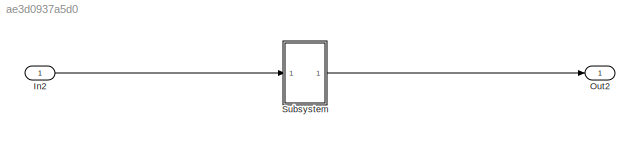
MODEL slx_ae3d0937a5d0
KIND model
CONFIG AbsTol = auto
CONFIG EnableMultiTasking = off
CONFIG FixedStep = auto
CONFIG MaxStep = auto
CONFIG MinStep = auto
CONFIG RelTol = 1e-3
CONFIG SampleTimeConstraint = Unconstrained
CONFIG Solver = FixedStepDiscrete
CONFIG SolverName = FixedStepDiscrete
CONFIG StartTime = 0.0
CONFIG StopTime = 10.0
BLOCK [Inport] In2
  OutDataTypeStr = uint32
BLOCK [Outport] Out2
  OutDataTypeStr = uint8
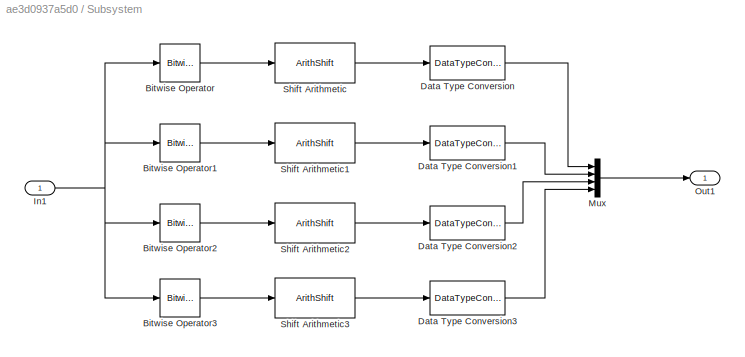
BLOCK [SubSystem] Subsystem
  Ports = [1, 1]
  RequestExecContextInheritance = off
BLOCK [Reference] Subsystem/Bitwise Operator  REF=simulink/Logic and Bit
Operations/Bitwise
Operator
  Ports = [1, 1]
  SourceBlock = simulink/Logic and Bit\nOperations/Bitwise\nOperator
  SourceProductBaseCode = SL
  SourceType = Bitwise Operator
BLOCK [Reference] Subsystem/Bitwise Operator1  REF=simulink/Logic and Bit
Operations/Bitwise
Operator
  Ports = [1, 1]
  SourceBlock = simulink/Logic and Bit\nOperations/Bitwise\nOperator
  SourceProductBaseCode = SL
  SourceType = Bitwise Operator
BLOCK [Reference] Subsystem/Bitwise Operator2  REF=simulink/Logic and Bit
Operations/Bitwise
Operator
  Ports = [1, 1]
  SourceBlock = simulink/Logic and Bit\nOperations/Bitwise\nOperator
  SourceProductBaseCode = SL
  SourceType = Bitwise Operator
BLOCK [Reference] Subsystem/Bitwise Operator3  REF=simulink/Logic and Bit
Operations/Bitwise
Operator
  Ports = [1, 1]
  SourceBlock = simulink/Logic and Bit\nOperations/Bitwise\nOperator
  SourceProductBaseCode = SL
  SourceType = Bitwise Operator
BLOCK [DataTypeConversion] Subsystem/Data Type Conversion
  OutDataTypeStr = uint8
  RndMeth = Floor
  SaturateOnIntegerOverflow = off
BLOCK [DataTypeConversion] Subsystem/Data Type Conversion1
  OutDataTypeStr = uint8
  RndMeth = Floor
  SaturateOnIntegerOverflow = off
BLOCK [DataTypeConversion] Subsystem/Data Type Conversion2
  OutDataTypeStr = uint8
  RndMeth = Floor
  SaturateOnIntegerOverflow = off
BLOCK [DataTypeConversion] Subsystem/Data Type Conversion3
  OutDataTypeStr = uint8
  RndMeth = Floor
  SaturateOnIntegerOverflow = off
BLOCK [Inport] Subsystem/In1
BLOCK [Mux] Subsystem/Mux
  DisplayOption = bar
  Ports = [4, 1]
BLOCK [Outport] Subsystem/Out1
BLOCK [ArithShift] Subsystem/Shift Arithmetic
  BitShiftDirection = Right
  InputPortMap = u0
  Ports = [1, 1]
BLOCK [ArithShift] Subsystem/Shift Arithmetic1
  BitShiftDirection = Right
  BitShiftNumber = 8
  InputPortMap = u0
  Ports = [1, 1]
BLOCK [ArithShift] Subsystem/Shift Arithmetic2
  BitShiftDirection = Right
  BitShiftNumber = 16
  InputPortMap = u0
  Ports = [1, 1]
BLOCK [ArithShift] Subsystem/Shift Arithmetic3
  BitShiftDirection = Right
  BitShiftNumber = 24
  InputPortMap = u0
  Ports = [1, 1]
LINE In2:1 -> Subsystem:1
LINE Subsystem/Bitwise Operator1:1 -> Subsystem/Shift Arithmetic1:1
LINE Subsystem/Bitwise Operator2:1 -> Subsystem/Shift Arithmetic2:1
LINE Subsystem/Bitwise Operator3:1 -> Subsystem/Shift Arithmetic3:1
LINE Subsystem/Bitwise Operator:1 -> Subsystem/Shift Arithmetic:1
LINE Subsystem/Data Type Conversion1:1 -> Subsystem/Mux:2
LINE Subsystem/Data Type Conversion2:1 -> Subsystem/Mux:3
LINE Subsystem/Data Type Conversion3:1 -> Subsystem/Mux:4
LINE Subsystem/Data Type Conversion:1 -> Subsystem/Mux:1
NET Subsystem/In1:1 -> Subsystem/Bitwise Operator1:1, Subsystem/Bitwise Operator2:1, Subsystem/Bitwise Operator3:1, Subsystem/Bitwise Operator:1
LINE Subsystem/Mux:1 -> Subsystem/Out1:1
LINE Subsystem/Shift Arithmetic1:1 -> Subsystem/Data Type Conversion1:1
LINE Subsystem/Shift Arithmetic2:1 -> Subsystem/Data Type Conversion2:1
LINE Subsystem/Shift Arithmetic3:1 -> Subsystem/Data Type Conversion3:1
LINE Subsystem/Shift Arithmetic:1 -> Subsystem/Data Type Conversion:1
LINE Subsystem:1 -> Out2:1
note: NET lines group one-source signal fan-out (src -> all destinations, sorted); 1:1 wires keep LINE
